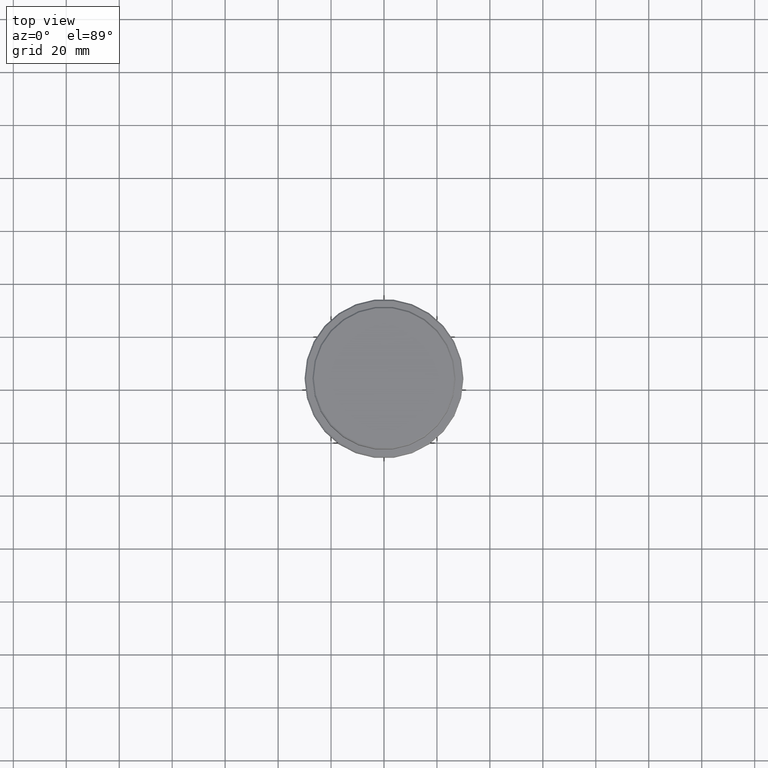
[diagram: clean part render]
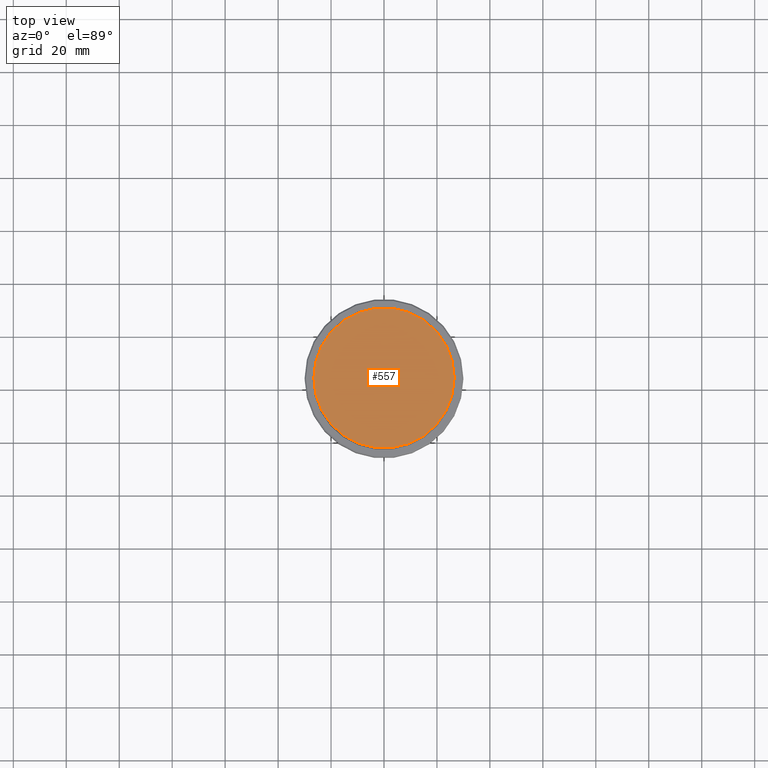
[diagram: same view with one face highlighted and labeled with its STEP entity id]
A machine part, top view. The second image highlights one B-rep face of the part: STEP entity #557.
In plain terms, the highlighted planar face has unit normal (0, -0, 1).
Its self-contained STEP definition (entity closure, byte-faithful):
#190 = AXIS2_PLACEMENT_3D ( 'NONE', #664, #639, #441 ) ;
#302 = DIRECTION ( 'NONE',  ( -0.000000000000000000, -0.000000000000000000, 1.000000000000000000 ) ) ;
#337 = EDGE_CURVE ( 'NONE', #892, #826, #819, .T. ) ;
#362 = ORIENTED_EDGE ( 'NONE', *, *, #337, .T. ) ;
#441 = DIRECTION ( 'NONE',  ( 1.000000000000000000, 0.000000000000000000, 0.000000000000000000 ) ) ;
#453 = AXIS2_PLACEMENT_3D ( 'NONE', #1276, #302, #607 ) ;
#553 = FACE_OUTER_BOUND ( 'NONE', #597, .T. ) ;
#557 = ADVANCED_FACE ( 'NONE', ( #553 ), #1411, .T. ) ;
#592 = CIRCLE ( 'NONE', #1316, 26.49999999999999645 ) ;
#597 = EDGE_LOOP ( 'NONE', ( #1353, #362 ) ) ;
#607 = DIRECTION ( 'NONE',  ( 1.000000000000000000, 0.000000000000000000, 0.000000000000000000 ) ) ;
#639 = DIRECTION ( 'NONE',  ( 0.000000000000000000, -0.000000000000000000, 1.000000000000000000 ) ) ;
#664 = CARTESIAN_POINT ( 'NONE',  ( 0.000000000000000000, 0.000000000000000000, 0.000000000000000000 ) ) ;
#678 = CARTESIAN_POINT ( 'NONE',  ( 26.49999999999999645, 3.275930187719169552E-15, 0.000000000000000000 ) ) ;
#779 = DIRECTION ( 'NONE',  ( -0.000000000000000000, -0.000000000000000000, 1.000000000000000000 ) ) ;
#819 = CIRCLE ( 'NONE', #453, 26.49999999999999645 ) ;
#826 = VERTEX_POINT ( 'NONE', #861 ) ;
#861 = CARTESIAN_POINT ( 'NONE',  ( -26.49999999999999645, 0.000000000000000000, 0.000000000000000000 ) ) ;
#890 = DIRECTION ( 'NONE',  ( 1.000000000000000000, 0.000000000000000000, 0.000000000000000000 ) ) ;
#892 = VERTEX_POINT ( 'NONE', #678 ) ;
#1099 = CARTESIAN_POINT ( 'NONE',  ( 0.000000000000000000, 0.000000000000000000, 0.000000000000000000 ) ) ;
#1276 = CARTESIAN_POINT ( 'NONE',  ( 0.000000000000000000, 0.000000000000000000, 0.000000000000000000 ) ) ;
#1316 = AXIS2_PLACEMENT_3D ( 'NONE', #1099, #779, #890 ) ;
#1335 = EDGE_CURVE ( 'NONE', #826, #892, #592, .T. ) ;
#1353 = ORIENTED_EDGE ( 'NONE', *, *, #1335, .T. ) ;
#1411 = PLANE ( 'NONE',  #190 ) ;